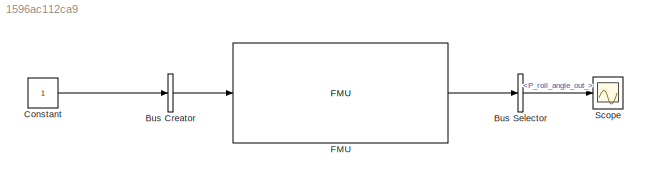
MODEL slx_1596ac112ca9
KIND model
CONFIG AbsTol = auto
CONFIG EnableMultiTasking = off
CONFIG FixedStep = auto
CONFIG MaxStep = auto
CONFIG MinStep = auto
CONFIG RelTol = 1e-3
CONFIG SampleTimeConstraint = Unconstrained
CONFIG SolverName = VariableStepAuto
CONFIG StartTime = 0.0
CONFIG StopTime = 10.0
BLOCK [BusCreator] Bus Creator
  DisplayOption = bar
  InheritFromInputs = on
  Inputs = 1
  NonVirtualBus = on
  OutDataTypeStr = Bus: mbs_in
  Ports = [1, 1]
BLOCK [BusSelector] Bus Selector
  OutputSignals = P_roll_angle_out_
  Ports = [1, 1]
BLOCK [Constant] Constant
BLOCK [FMU] FMU
  FMUMode = ModelExchange
  FMUName = mbsim.fmu
  MaskDisplay = disp('Motorcycle_FMU');\nport_label('output',1,'Links');\nport_label('input',1,'Links');
  MaskPromptString = 'Output directory'MBSim output directory for all files: *.mbsh5, *.ombvh5, *.ombvx, ...|Plot|'Constraint tolerance'
  MaskType = Motorcycle_FMU [Model Exchange, v1.0]
  MultithreadedSim = off
  P_Constraint_tolerance_ = struct('position',1.0000000000000001e-05,'velocity',1.0000000000000001e-05)
  P_Output_directory_ = .
  Plot = struct('mode',int32(2),'P_each_n_th_step_',int32(5),'P_sample_time_',0.001)
  Ports = [1, 1]
BLOCK [Scope] Scope
  Floating = off
  NumInputPorts = 1
  Ports = [1]
  ScopeSpecificationString = Simulink.scopes.TimeScopeBlockCfg('CurrentConfiguration', extmgr.ConfigurationSet(extmgr.Configuration('Core','General UI',true),extmgr.Configuration('Core','Source UI',true),extmgr.Configuration('Sources','WiredSimulink',true),extmgr.Configuration('Visuals','Time Domain',true),extmgr.Configuration('Tools','Plot Navigation',true),extmgr.Configuration('Tools','Measurements',true)),'Version','2022a'...<+1ch>
LINE Bus Creator:1 -> FMU:1
LINE Bus Selector:1 -> Scope:1
LINE Constant:1 -> Bus Creator:1
LINE FMU:1 -> Bus Selector:1
